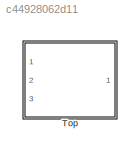
MODEL slx_c44928062d11
KIND model
CONFIG AbsTol = auto
CONFIG EnableMultiTasking = off
CONFIG FixedStep = auto
CONFIG MaxStep = auto
CONFIG MinStep = auto
CONFIG RelTol = 1e-3
CONFIG SampleTimeConstraint = Unconstrained
CONFIG SolverName = VariableStepAuto
CONFIG StartTime = 0.0
CONFIG StopTime = 10.0
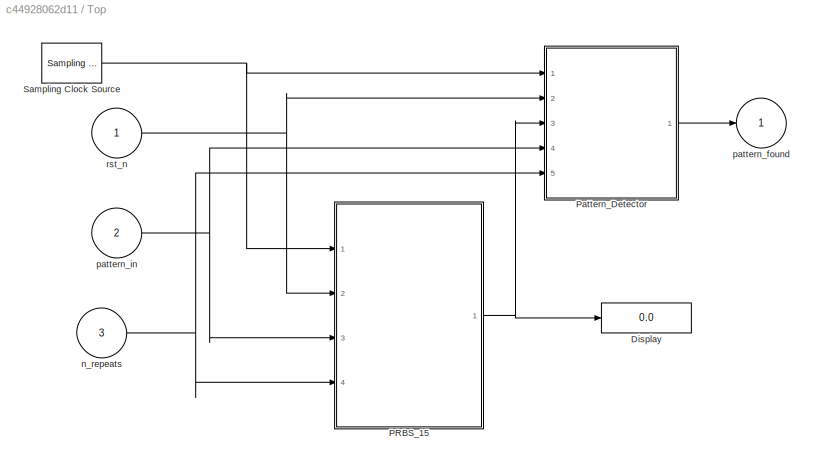
BLOCK [SubSystem] Top
  Ports = [3, 1]
  RequestExecContextInheritance = off
BLOCK [Display] Top/Display
  Decimation = 1
  Ports = [1]
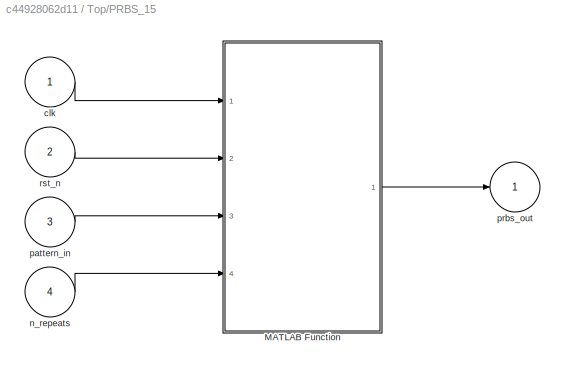
BLOCK [SubSystem] Top/PRBS_15
  Ports = [4, 1]
  RequestExecContextInheritance = off
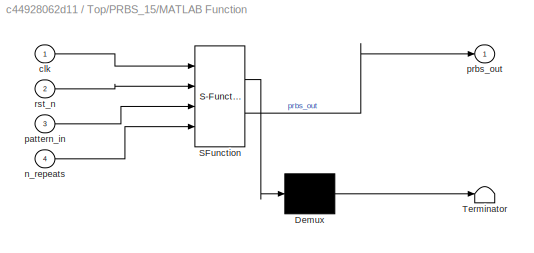
BLOCK [SubSystem] Top/PRBS_15/MATLAB Function
  ErrorFcn = Stateflow.Translate.translate
  PermitHierarchicalResolution = ExplicitOnly
  Ports = [4, 1]
  RequestExecContextInheritance = off
  SFBlockType = MATLAB Function
  TreatAsAtomicUnit = on
BLOCK [Demux] Top/PRBS_15/MATLAB Function/ Demux 
  Outputs = 1
  Ports = [1, 1]
BLOCK [S-Function] Top/PRBS_15/MATLAB Function/ SFunction 
  EnableBusSupport = on
  FunctionName = sf_sfun
  PortCounts = [4 2]
  Ports = [4, 2]
  SFcnIsStateOwnerBlock = off
  SFunctionDeploymentMode = off
  Tag = Stateflow S-Function 1
BLOCK [Terminator] Top/PRBS_15/MATLAB Function/ Terminator 
BLOCK [Inport] Top/PRBS_15/MATLAB Function/clk
BLOCK [Inport] Top/PRBS_15/MATLAB Function/n_repeats
  Port = 4
BLOCK [Inport] Top/PRBS_15/MATLAB Function/pattern_in
  Port = 3
BLOCK [Outport] Top/PRBS_15/MATLAB Function/prbs_out
BLOCK [Inport] Top/PRBS_15/MATLAB Function/rst_n
  Port = 2
BLOCK [Inport] Top/PRBS_15/clk
BLOCK [Inport] Top/PRBS_15/n_repeats
  Port = 4
BLOCK [Inport] Top/PRBS_15/pattern_in
  Port = 3
BLOCK [Outport] Top/PRBS_15/prbs_out
BLOCK [Inport] Top/PRBS_15/rst_n
  Port = 2
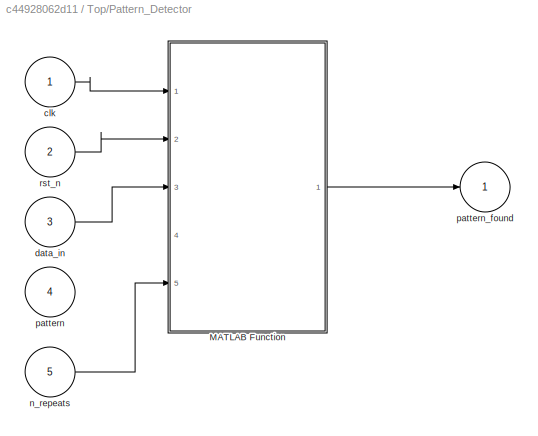
BLOCK [SubSystem] Top/Pattern_Detector
  Ports = [5, 1]
  RequestExecContextInheritance = off
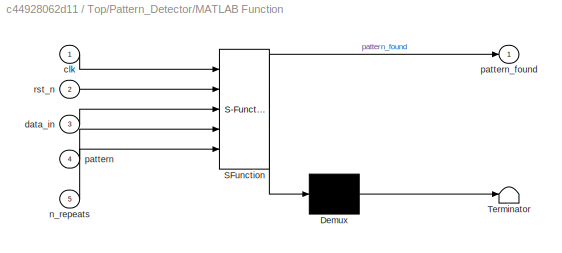
BLOCK [SubSystem] Top/Pattern_Detector/MATLAB Function
  ErrorFcn = Stateflow.Translate.translate
  PermitHierarchicalResolution = ExplicitOnly
  Ports = [5, 1]
  RequestExecContextInheritance = off
  SFBlockType = MATLAB Function
  TreatAsAtomicUnit = on
BLOCK [Demux] Top/Pattern_Detector/MATLAB Function/ Demux 
  Outputs = 1
  Ports = [1, 1]
BLOCK [S-Function] Top/Pattern_Detector/MATLAB Function/ SFunction 
  EnableBusSupport = on
  FunctionName = sf_sfun
  PortCounts = [5 2]
  Ports = [5, 2]
  SFcnIsStateOwnerBlock = off
  SFunctionDeploymentMode = off
  Tag = Stateflow S-Function 2
BLOCK [Terminator] Top/Pattern_Detector/MATLAB Function/ Terminator 
BLOCK [Inport] Top/Pattern_Detector/MATLAB Function/clk
BLOCK [Inport] Top/Pattern_Detector/MATLAB Function/data_in
  Port = 3
BLOCK [Inport] Top/Pattern_Detector/MATLAB Function/n_repeats
  Port = 5
BLOCK [Inport] Top/Pattern_Detector/MATLAB Function/pattern
  Port = 4
BLOCK [Outport] Top/Pattern_Detector/MATLAB Function/pattern_found
BLOCK [Inport] Top/Pattern_Detector/MATLAB Function/rst_n
  Port = 2
BLOCK [Inport] Top/Pattern_Detector/clk
BLOCK [Inport] Top/Pattern_Detector/data_in
  Port = 3
BLOCK [Inport] Top/Pattern_Detector/n_repeats
  Port = 5
BLOCK [Inport] Top/Pattern_Detector/pattern
  Port = 4
BLOCK [Outport] Top/Pattern_Detector/pattern_found
BLOCK [Inport] Top/Pattern_Detector/rst_n
  Port = 2
BLOCK [Reference] Top/Sampling Clock Source  REF=msbAdcFoundation/Sampling Clock Source
  Ports = [0, 1]
  SourceBlock = msbAdcFoundation/Sampling Clock Source
  SourceProductBaseCode = AM
  SourceType = SamplingClockSource
BLOCK [Inport] Top/n_repeats
  Port = 3
BLOCK [Outport] Top/pattern_found
BLOCK [Inport] Top/pattern_in
  Port = 2
BLOCK [Inport] Top/rst_n
LINE Top/PRBS_15/MATLAB Function:1 -> Top/PRBS_15/prbs_out:1
LINE Top/PRBS_15/clk:1 -> Top/PRBS_15/MATLAB Function:1
LINE Top/PRBS_15/n_repeats:1 -> Top/PRBS_15/MATLAB Function:4
LINE Top/PRBS_15/pattern_in:1 -> Top/PRBS_15/MATLAB Function:3
LINE Top/PRBS_15/rst_n:1 -> Top/PRBS_15/MATLAB Function:2
NET Top/PRBS_15:1 -> Top/Display:1, Top/Pattern_Detector:3
LINE Top/Pattern_Detector/MATLAB Function:1 -> Top/Pattern_Detector/pattern_found:1
LINE Top/Pattern_Detector/clk:1 -> Top/Pattern_Detector/MATLAB Function:1
LINE Top/Pattern_Detector/data_in:1 -> Top/Pattern_Detector/MATLAB Function:3
LINE Top/Pattern_Detector/n_repeats:1 -> Top/Pattern_Detector/MATLAB Function:5
LINE Top/Pattern_Detector/rst_n:1 -> Top/Pattern_Detector/MATLAB Function:2
LINE Top/Pattern_Detector:1 -> Top/pattern_found:1
NET Top/Sampling Clock Source:1 -> Top/PRBS_15:1, Top/Pattern_Detector:1
NET Top/n_repeats:1 -> Top/PRBS_15:4, Top/Pattern_Detector:5
NET Top/pattern_in:1 -> Top/PRBS_15:3, Top/Pattern_Detector:4
NET Top/rst_n:1 -> Top/PRBS_15:2, Top/Pattern_Detector:2
note: NET lines group one-source signal fan-out (src -> all destinations, sorted); 1:1 wires keep LINE
CHART Top/PRBS_15/MATLAB Function states=1 transitions=1
  STATE_LABEL 'eML_blk_kernel()'
  STATE_LABEL "SCRIPT:\nfunction prbs_out = PRBS_15(clk, rst_n, pattern_in, n_repeats)\n    % Initialize variables\n    persistent pattern_counter byte_counter prbs_out_reg;\n    \n    if isempty(pattern_counter)\n        pattern_counter = 0;\n        byte_counter = 0;\n        prbs_out_reg = uint8(255);  % 8'hFF in Verilog\n    end\n    \n    % Reset condition\n    if rst_n == 0 || n_repeats == 0\n        prbs_out_reg = uin...<+1604ch>"
CHART Top/Pattern_Detector/MATLAB Function states=1 transitions=1
  STATE_LABEL 'eML_blk_kernel()'
  STATE_LABEL 'SCRIPT:\nfunction pattern_found = Pattern_Detector(clk, rst_n, data_in, pattern, n_repeats)\n    % Initialize persistent variables to store states between clock cycles\n    persistent current_state next_state pattern_counter byte_counter;\n    persistent pattern_found_reg;\n\n    % Define the state values for the FSM\n    IDLE = uint8(0);\n    MATCHING = uint8(1);\n    FOUND = uint8(2);\n\n    if isempty(cur...<+2345ch>'
CHART  states=0 transitions=0
CHART  states=0 transitions=0
